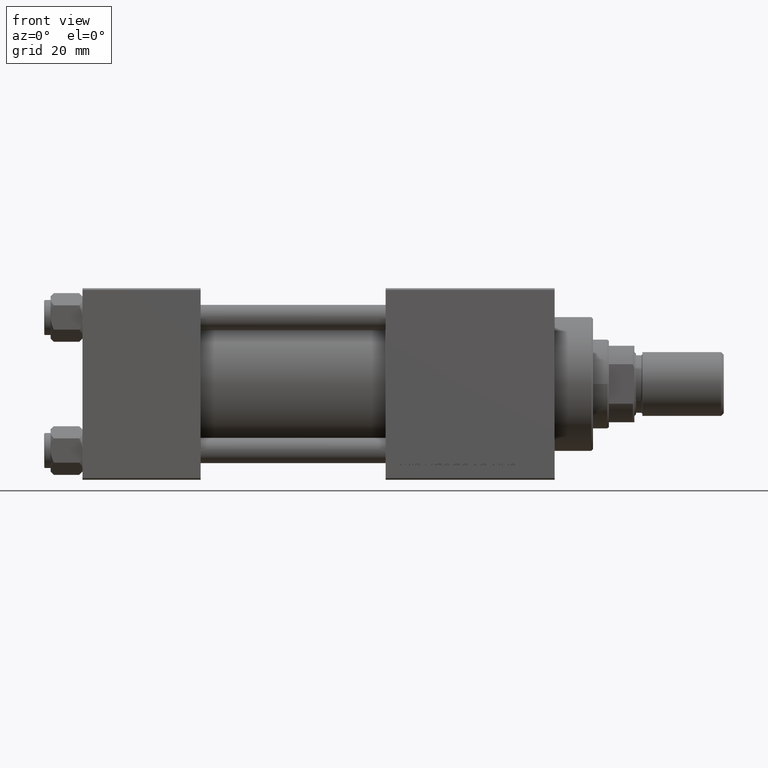
[diagram: clean part render]
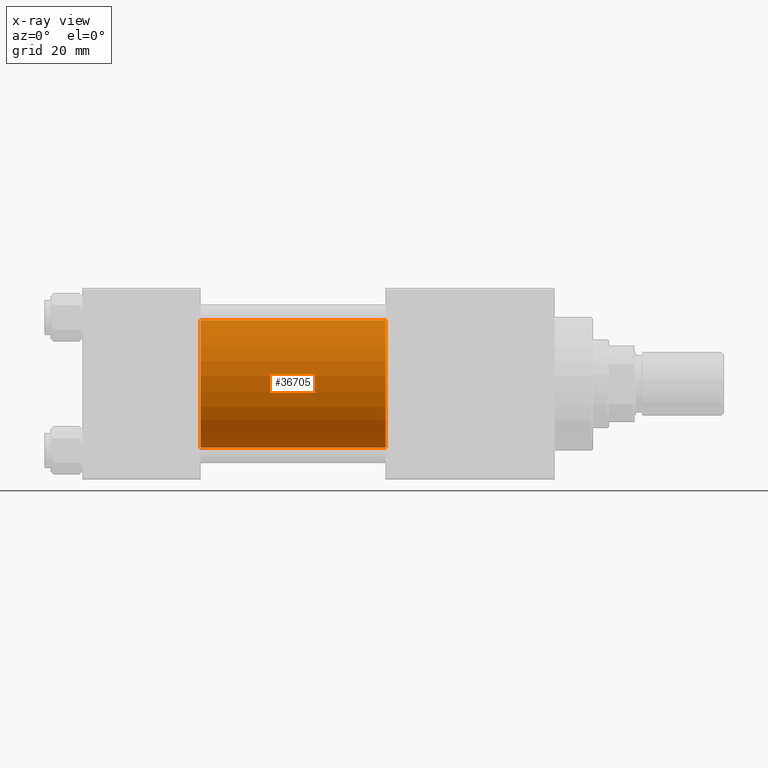
[diagram: x-ray — body ghosted, one internal face saturated and labeled with its STEP entity id]
A machine part, front view, then the same camera in x-ray: the body is ghosted and one INTERNAL B-rep face — a face not visible from any outside direction — is saturated and labeled: STEP entity #36705.
In plain terms, the highlighted cylindrical surface (partial cylindrical patch) has radius 20 mm, axis along (-1, -0, -0).
Its self-contained STEP definition (entity closure, byte-faithful):
#3222 = CARTESIAN_POINT ( 'NONE',  ( 95.00000000000000000, -1.527916156705046464E-16, -20.00000000000000000 ) ) ;
#3384 = DIRECTION ( 'NONE',  ( 0.000000000000000000, 0.000000000000000000, -1.000000000000000000 ) ) ;
#5308 = EDGE_CURVE ( 'NONE', #26003, #10371, #41658, .T. ) ;
#6100 = CARTESIAN_POINT ( 'NONE',  ( 95.00000000000000000, -1.527916156705046464E-16, -20.00000000000000000 ) ) ;
#8276 = CARTESIAN_POINT ( 'NONE',  ( 37.00000000000000000, -2.602085213965210642E-15, 0.000000000000000000 ) ) ;
#9090 = CARTESIAN_POINT ( 'NONE',  ( 95.00000000000000000, -2.602085213965210642E-15, 0.000000000000000000 ) ) ;
#9755 = DIRECTION ( 'NONE',  ( -1.000000000000000000, -0.000000000000000000, -0.000000000000000000 ) ) ;
#9827 = DIRECTION ( 'NONE',  ( 0.000000000000000000, 0.000000000000000000, -1.000000000000000000 ) ) ;
#10371 = VERTEX_POINT ( 'NONE', #12041 ) ;
#12041 = CARTESIAN_POINT ( 'NONE',  ( 37.00000000000000000, -2.602085213965210642E-15, 20.00000000000000000 ) ) ;
#15065 = AXIS2_PLACEMENT_3D ( 'NONE', #8276, #47658, #3384 ) ;
#15598 = VECTOR ( 'NONE', #9755, 1000.000000000000000 ) ;
#15635 = ORIENTED_EDGE ( 'NONE', *, *, #24275, .T. ) ;
#17275 = EDGE_CURVE ( 'NONE', #10371, #34515, #18341, .T. ) ;
#18341 = CIRCLE ( 'NONE', #15065, 20.00000000000000000 ) ;
#24275 = EDGE_CURVE ( 'NONE', #26003, #36988, #43957, .T. ) ;
#25364 = ORIENTED_EDGE ( 'NONE', *, *, #17275, .F. ) ;
#25929 = DIRECTION ( 'NONE',  ( -1.000000000000000000, -0.000000000000000000, -0.000000000000000000 ) ) ;
#26003 = VERTEX_POINT ( 'NONE', #33295 ) ;
#26305 = DIRECTION ( 'NONE',  ( 1.000000000000000000, 0.000000000000000000, 0.000000000000000000 ) ) ;
#27734 = CYLINDRICAL_SURFACE ( 'NONE', #46245, 20.00000000000000000 ) ;
#27887 = EDGE_LOOP ( 'NONE', ( #15635, #45548, #25364, #35453 ) ) ;
#28349 = AXIS2_PLACEMENT_3D ( 'NONE', #9090, #26305, #9827 ) ;
#28846 = EDGE_CURVE ( 'NONE', #36988, #34515, #49879, .T. ) ;
#31083 = FACE_OUTER_BOUND ( 'NONE', #27887, .T. ) ;
#33295 = CARTESIAN_POINT ( 'NONE',  ( 95.00000000000000000, -2.602085213965210642E-15, 20.00000000000000000 ) ) ;
#34515 = VERTEX_POINT ( 'NONE', #42731 ) ;
#35453 = ORIENTED_EDGE ( 'NONE', *, *, #5308, .F. ) ;
#36705 = ADVANCED_FACE ( 'NONE', ( #31083 ), #27734, .F. ) ;
#36988 = VERTEX_POINT ( 'NONE', #3222 ) ;
#38811 = CARTESIAN_POINT ( 'NONE',  ( 95.00000000000000000, -2.602085213965210642E-15, 0.000000000000000000 ) ) ;
#41658 = LINE ( 'NONE', #49679, #15598 ) ;
#42731 = CARTESIAN_POINT ( 'NONE',  ( 37.00000000000000000, -1.527916156705046464E-16, -20.00000000000000000 ) ) ;
#43957 = CIRCLE ( 'NONE', #28349, 20.00000000000000000 ) ;
#45548 = ORIENTED_EDGE ( 'NONE', *, *, #28846, .T. ) ;
#45998 = VECTOR ( 'NONE', #25929, 1000.000000000000000 ) ;
#46245 = AXIS2_PLACEMENT_3D ( 'NONE', #38811, #47554, #50922 ) ;
#47554 = DIRECTION ( 'NONE',  ( -1.000000000000000000, -0.000000000000000000, -0.000000000000000000 ) ) ;
#47658 = DIRECTION ( 'NONE',  ( 1.000000000000000000, 0.000000000000000000, 0.000000000000000000 ) ) ;
#49679 = CARTESIAN_POINT ( 'NONE',  ( 95.00000000000000000, -2.602085213965210642E-15, 20.00000000000000000 ) ) ;
#49879 = LINE ( 'NONE', #6100, #45998 ) ;
#50922 = DIRECTION ( 'NONE',  ( 0.000000000000000000, 0.000000000000000000, 1.000000000000000000 ) ) ;